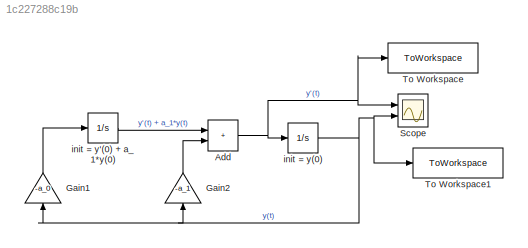
MODEL slx_1c227288c19b
KIND model
CONFIG AbsTol = auto
CONFIG EnableMultiTasking = off
CONFIG FixedStep = 0.0001
CONFIG MaxStep = auto
CONFIG MinStep = auto
CONFIG RelTol = 1e-3
CONFIG SampleTimeConstraint = Unconstrained
CONFIG SolverName = FixedStepAuto
CONFIG StartTime = 0.0
CONFIG StopTime = 20
BLOCK [Sum] Add
  IconShape = rectangular
  Ports = [2, 1]
BLOCK [Gain] Gain1
  Gain = -a_0
  NameLocation = right
BLOCK [Gain] Gain2
  Gain = -a_1
  NameLocation = right
BLOCK [Scope] Scope
  Floating = off
  NumInputPorts = 2
  Ports = [2]
  ScopeSpecificationString = Simulink.scopes.TimeScopeBlockCfg('CurrentConfiguration', extmgr.ConfigurationSet(extmgr.Configuration('Core','General UI',true),extmgr.Configuration('Core','Source UI',true),extmgr.Configuration('Sources','WiredSimulink',true),extmgr.Configuration('Visuals','Time Domain',true,'SerializedDisplays',{struct('MinYLimReal','-1202.53271','MaxYLimReal','1765.40565','YLabelReal','','MinYLimMag','  0.0000...<+1382ch>
BLOCK [ToWorkspace] To Workspace
  FixptAsFi = on
  MaxDataPoints = inf
  Ports = [1]
  SampleTime = -1
  SaveFormat = Timeseries
  VariableName = y1
BLOCK [ToWorkspace] To Workspace1
  FixptAsFi = on
  MaxDataPoints = inf
  Ports = [1]
  SampleTime = -1
  SaveFormat = Timeseries
  VariableName = y
BLOCK [Integrator] init = y'(0) + a_1*y(0)
  InitialCondition = s2
  Ports = [1, 1]
BLOCK [Integrator] init = y(0)
  InitialCondition = s1
  Ports = [1, 1]
NET Add:1 -> Scope:1, To Workspace:1, init = y(0):1
LINE Gain1:1 -> init = y'(0) + a_1*y(0):1
LINE Gain2:1 -> Add:2
LINE init = y'(0) + a_1*y(0):1 -> Add:1
NET init = y(0):1 -> Gain1:1, Gain2:1, Scope:2, To Workspace1:1
note: NET lines group one-source signal fan-out (src -> all destinations, sorted); 1:1 wires keep LINE
